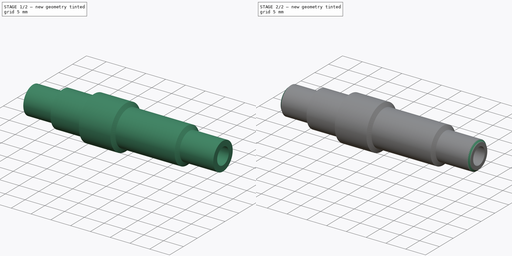
[diagram: build sequence overview — one tinted view per stage of 2, left to right]
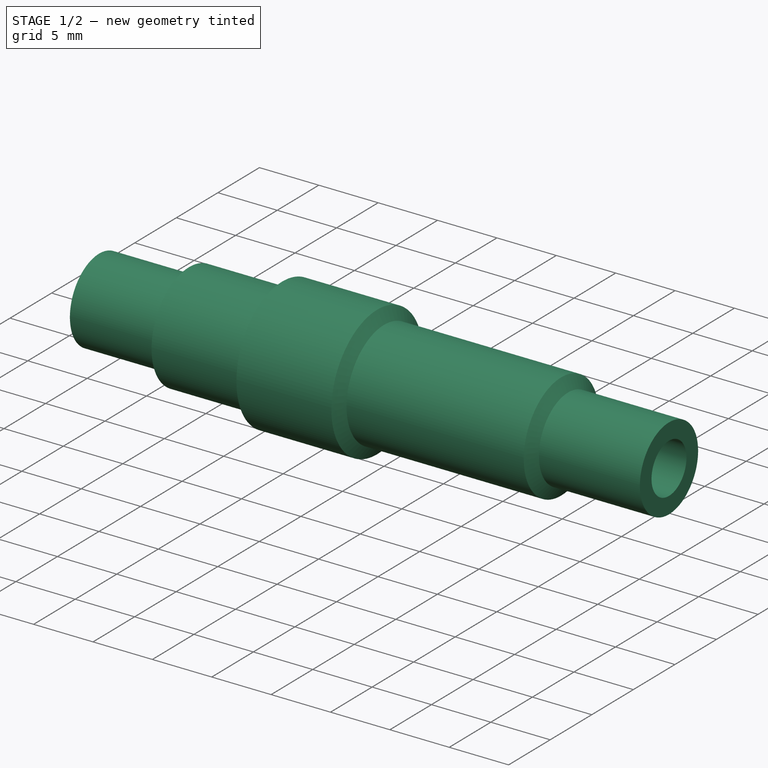
[diagram: stage 1 of 2 — iso view after this stage's code; geometry added in this stage tinted green]
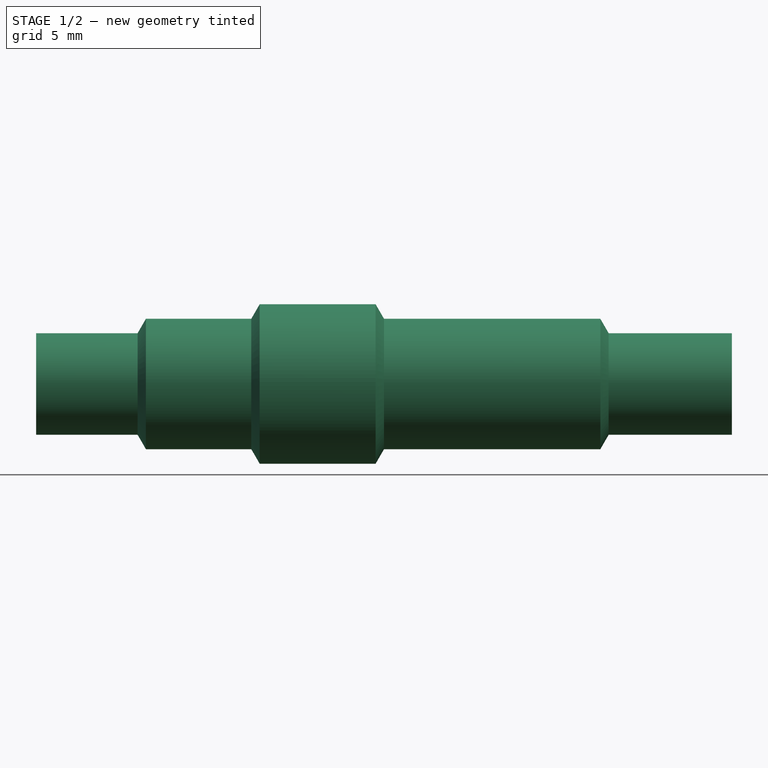
[diagram: stage 1 of 2 — front view after this stage's code; geometry added in this stage tinted green]
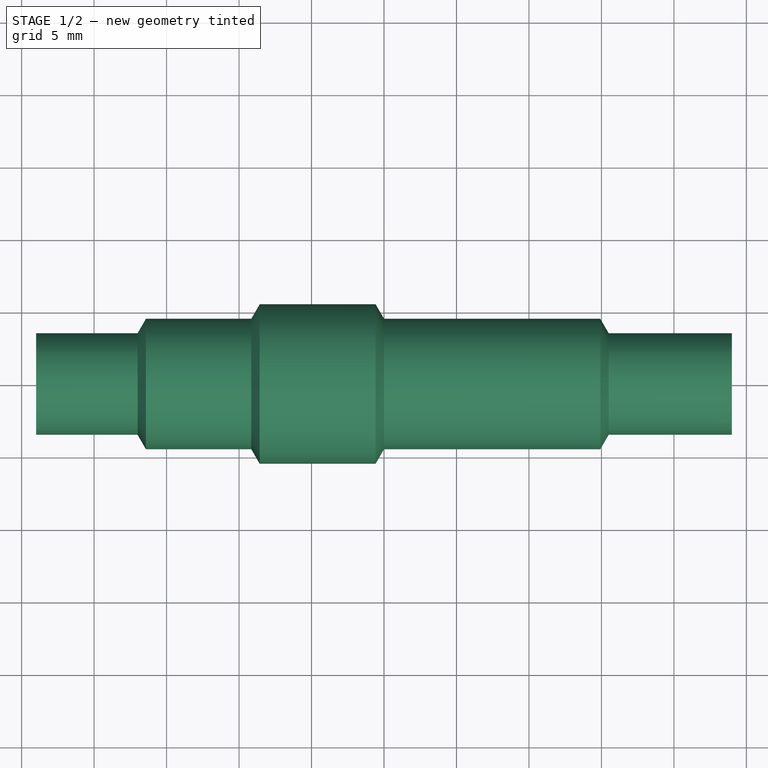
[diagram: stage 1 of 2 — top view after this stage's code; geometry added in this stage tinted green]
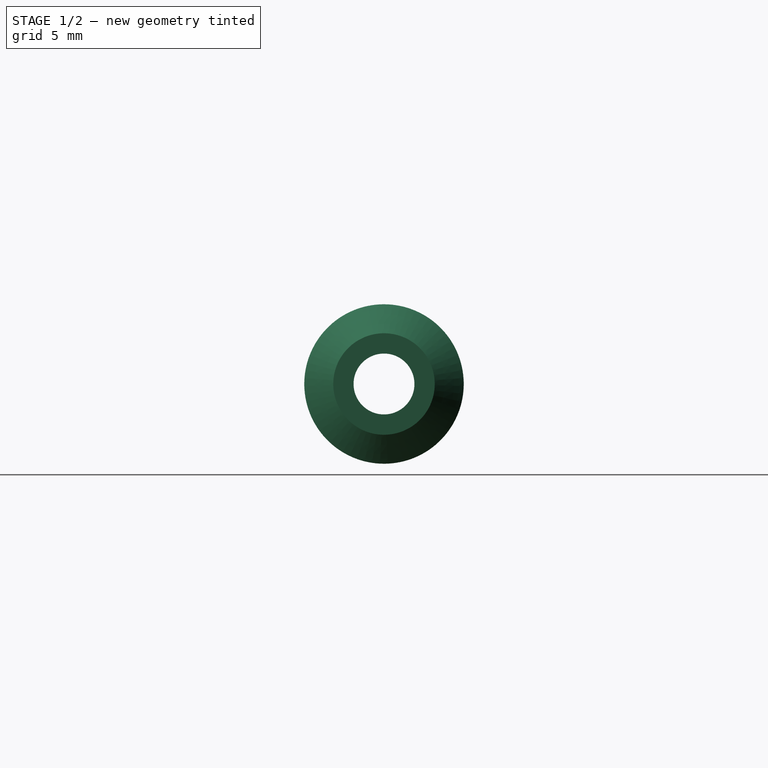
[diagram: stage 1 of 2 — right view after this stage's code; geometry added in this stage tinted green]
FCSTD DOCUMENT  (FreeCAD 0.20R28730 (Git))
Label: Fuse Holder Inline
License: All rights reserved
LicenseURL: http://en.wikipedia.org/wiki/All_rights_reserved
objects: Sketcher::SketchObject×2, PartDesign::CoordinateSystem×1, PartDesign::Revolution×1, PartDesign::Pocket×1, PartDesign::Chamfer×1, PartDesign::Body×1
note: 10 computed .brp shape members not serialized (recipe doc carries the construction recipe); baked Part::Feature solids carry a one-line shape summary decoded from their .brp

FEATURE [PartDesign::CoordinateSystem] LCS_0
  AttacherType = Attacher::AttachEngine3D
  MapMode = 2
  Support = -> [X_Axis]
FEATURE [Sketcher::SketchObject] Sketch
  FullyConstrained = true
  MapMode = 5
  Placement = pos=(0,0,0) rot=(1,0,0;1.5708rad)
  Support = -> [XZ_Plane]
  sketch-geometry (12):
    g0: LineSegment StartX=24 StartY=0 StartZ=0 EndX=-24 EndY=0 EndZ=0
    g1: LineSegment StartX=-24 StartY=0 StartZ=0 EndX=-24 EndY=3.5 EndZ=0
    g2: LineSegment StartX=-24 StartY=3.5 StartZ=0 EndX=-17 EndY=3.5 EndZ=0
    g3: LineSegment StartX=-17 StartY=3.5 StartZ=0 EndX=-16.4226 EndY=4.5 EndZ=0
    g4: LineSegment StartX=-16.4226 StartY=4.5 StartZ=0 EndX=-9.1547 EndY=4.5 EndZ=0
    g5: LineSegment StartX=-9.1547 StartY=4.5 StartZ=0 EndX=-8.57735 EndY=5.5 EndZ=0
    g6: LineSegment StartX=-8.57735 StartY=5.5 StartZ=0 EndX=-0.57735 EndY=5.5 EndZ=0
    g7: LineSegment StartX=-0.57735 StartY=5.5 StartZ=0 EndX=0 EndY=4.5 EndZ=0
    g8: LineSegment StartX=0 StartY=4.5 StartZ=0 EndX=14.9226 EndY=4.5 EndZ=0
    g9: LineSegment StartX=14.9226 StartY=4.5 StartZ=0 EndX=15.5 EndY=3.5 EndZ=0
    g10: LineSegment StartX=15.5 StartY=3.5 StartZ=0 EndX=24 EndY=3.5 EndZ=0
    g11: LineSegment StartX=24 StartY=3.5 StartZ=0 EndX=24 EndY=0 EndZ=0
  constraints (35):
    c: PointOnObject(g0,g-1)
    c: Coincident(g0,g1)
    c: Vertical(g1)
    c: Coincident(g1,g2)
    c: Horizontal(g2)
    c: Coincident(g2,g3)
    c: Coincident(g3,g4)
    c: Horizontal(g4)
    c: Coincident(g4,g5)
    c: Coincident(g5,g6)
    c: Horizontal(g6)
    c: Coincident(g6,g7)
    c: Coincident(g7,g8)
    c: Horizontal(g8)
    c: Coincident(g8,g9)
    c: Coincident(g9,g10)
    c: Horizontal(g10)
    c: Coincident(g10,g11)
    c: Coincident(g11,g0)
    c: Vertical(g11)
    c: Symmetric(g0,g0,g-1)
    c: DistanceX(g0,g0) = 48
    c: DistanceY(g1,g1) = 3.5
    c: DistanceY(g0,g3) = 4.5
    c: DistanceY(g0,g5) = 5.5
    c: Horizontal(g4,g7)
    c: Horizontal(g2,g9)
    c: Parallel(g3,g5)
    c: Angle(g-1,g3) = 1.0472
    c: Angle(g9,g-1) = 1.0472
    c: Vertical(g7,g-1)
    c: Parallel(g7,g9)
    c: DistanceX(g10,g10) = 8.5
    c: DistanceX(g2,g2) = 7
    c: DistanceX(g6,g6) = 8
FEATURE [PartDesign::Revolution] Revolution
  Angle = 360
  Axis = (1,0,0)
  Base = (0,0,0)
  Placement = pos=(0,0,0) rot=(1,0,0;1.5708rad)
  Profile = -> Sketch
  ReferenceAxis = -> X_Axis
  Refine = true
FEATURE [Sketcher::SketchObject] Sketch001
  FullyConstrained = true
  MapMode = 5
  Placement = pos=(0,0,0) rot=(0.57735,0.57735,0.57735;2.0944rad)
  Support = -> [YZ_Plane]
  sketch-geometry (1):
    g0: Circle CenterX=0 CenterY=0 CenterZ=0 NormalX=0 NormalY=0 NormalZ=1 AngleXU=0 Radius=2.1
  constraints (2):
    c: Coincident(g0,g-1)
    c: Diameter(g0) = 4.2
FEATURE [PartDesign::Pocket] Pocket
  BaseFeature = -> Revolution
  Direction = (-1,2e-16,-3e-16)
  Length = 5
  Length2 = 5
  Midplane = true
  Placement = pos=(0,0,0) rot=(1,0,0;1.5708rad)
  Profile = -> Sketch001
  ReferenceAxis = -> Sketch001 [N_Axis]
  Refine = true
  Type = 1
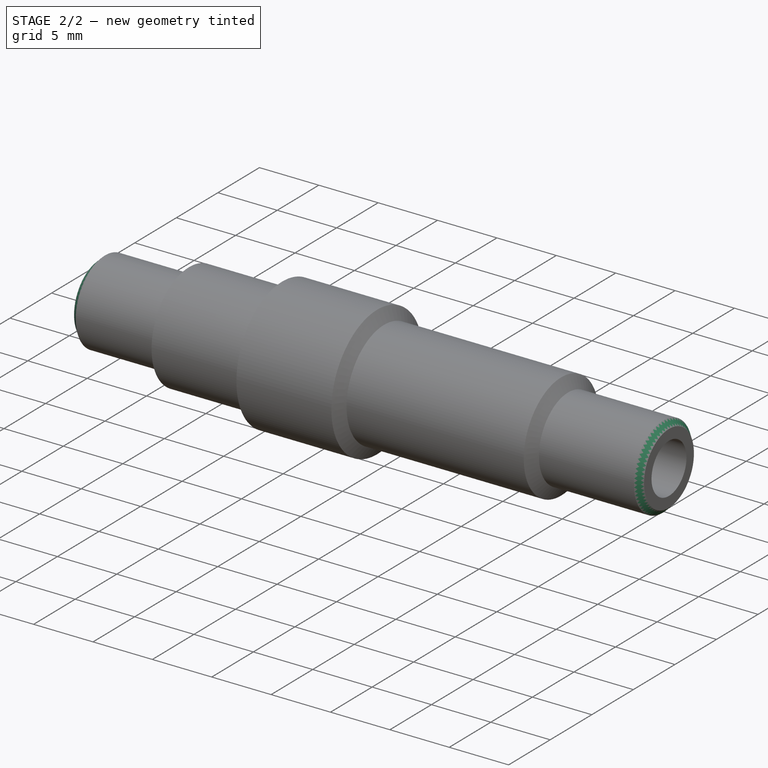
[diagram: stage 2 of 2 — iso view after this stage's code; geometry added in this stage tinted green]
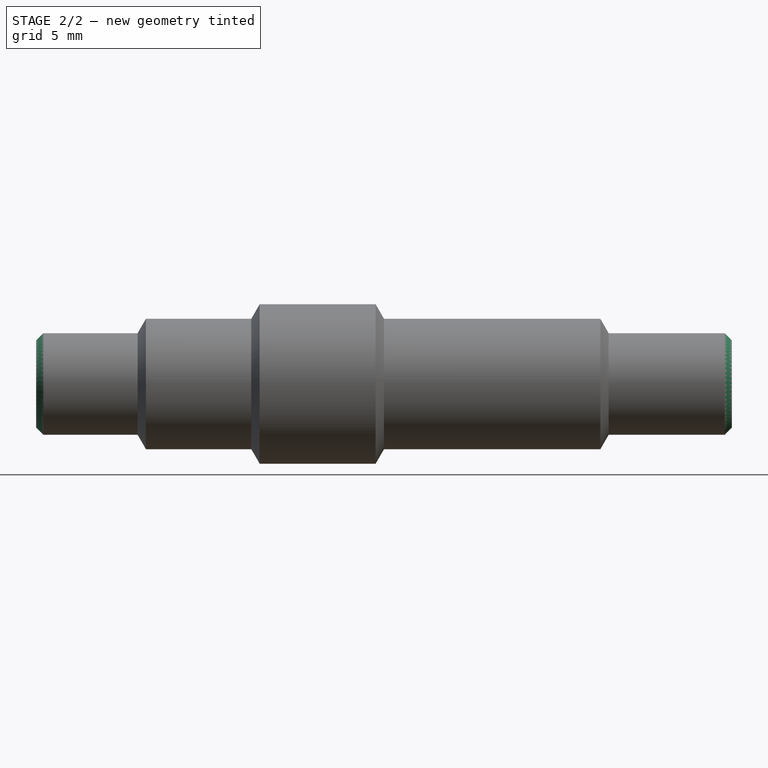
[diagram: stage 2 of 2 — front view after this stage's code; geometry added in this stage tinted green]
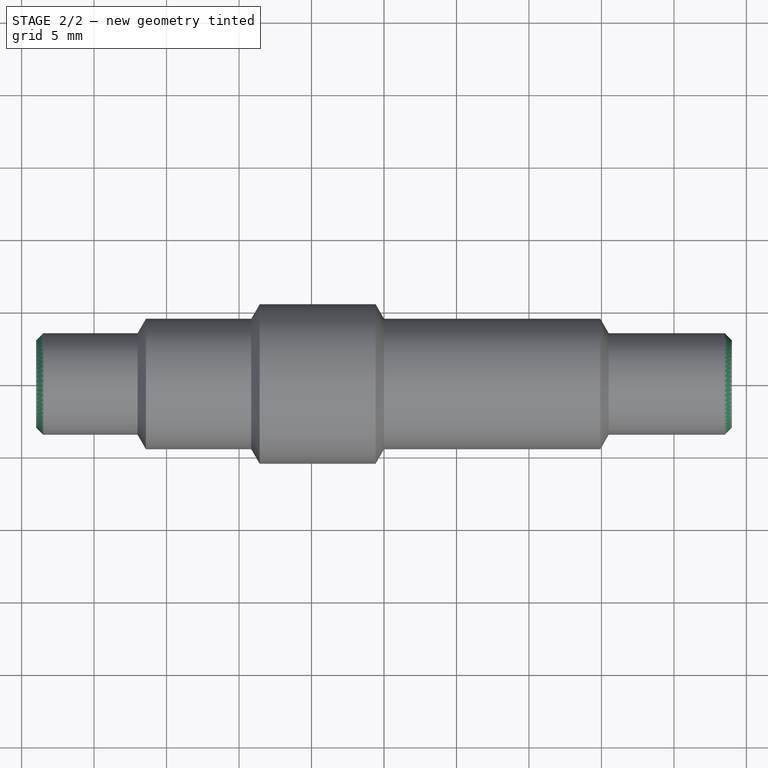
[diagram: stage 2 of 2 — top view after this stage's code; geometry added in this stage tinted green]
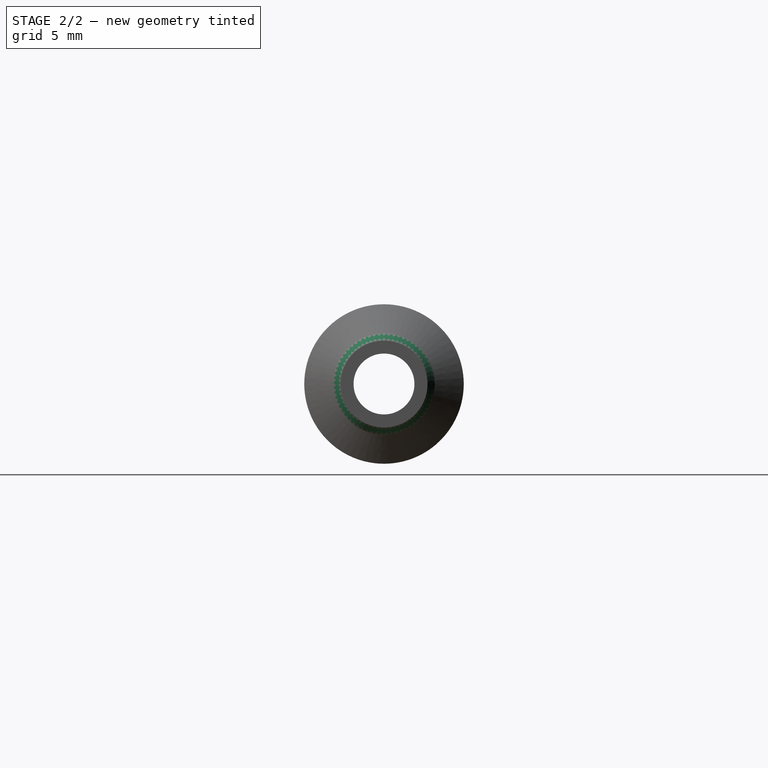
[diagram: stage 2 of 2 — right view after this stage's code; geometry added in this stage tinted green]
FEATURE [PartDesign::Chamfer] Chamfer
  Angle = 45
  Base = -> Pocket [Edge1,Edge9]
  BaseFeature = -> Pocket
  ChamferType = 0
  FlipDirection = false
  Placement = pos=(0,0,0) rot=(1,0,0;1.5708rad)
  Refine = true
  Size = 0.5
  Size2 = 1
  SupportTransform = false
  UseAllEdges = false
FEATURE [PartDesign::Body] Fuse_Holder_01500274ZXU
  Group = -> [LCS_0,Sketch,Revolution,Sketch001,Pocket,Chamfer]
  Origin = -> Origin
  Tip = -> Chamfer
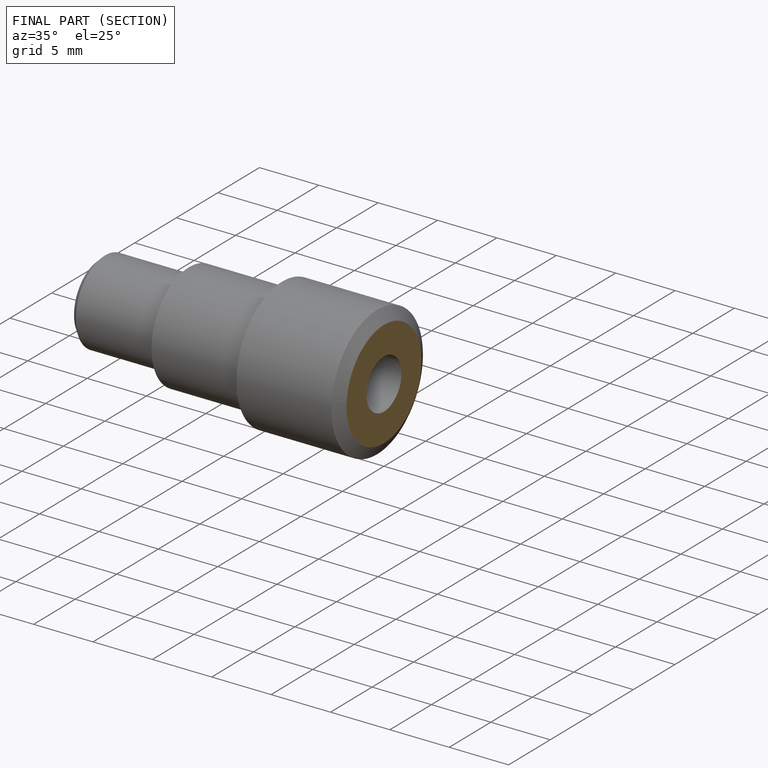
[diagram: finished part — half-section view (interior)]
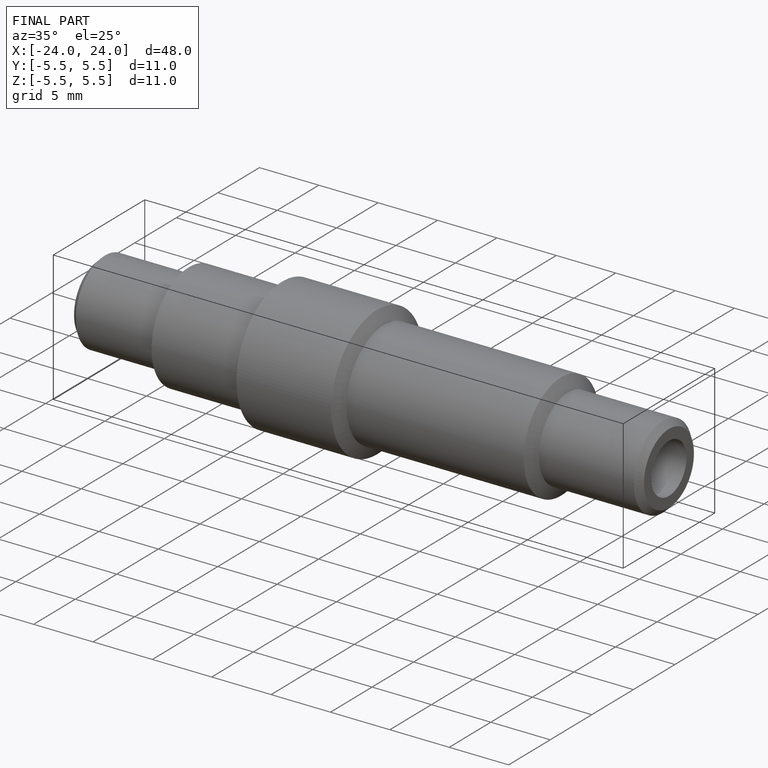
[diagram: finished part — iso view with bounding-box wireframe]
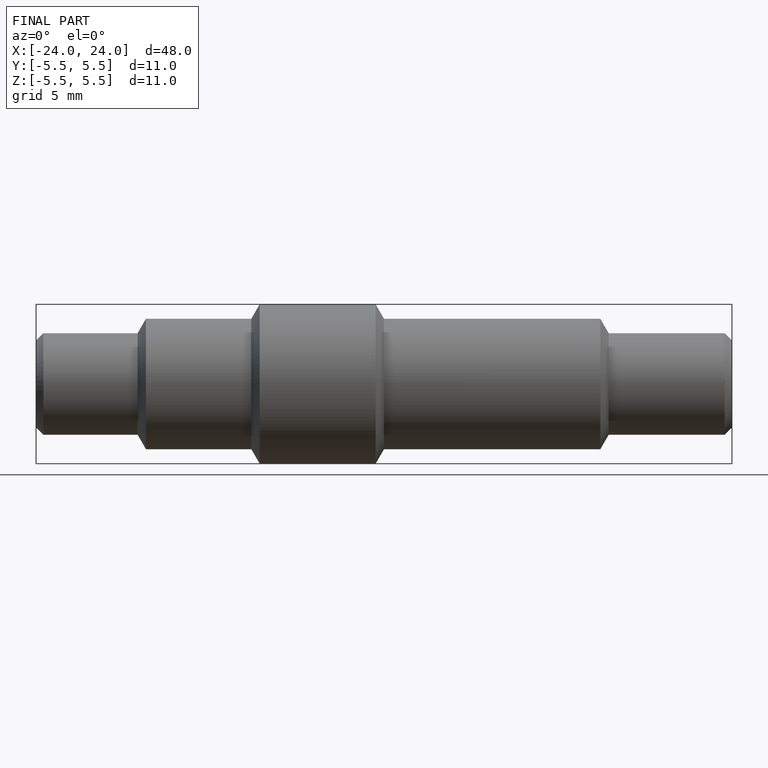
[diagram: finished part — front view with bounding-box wireframe]
